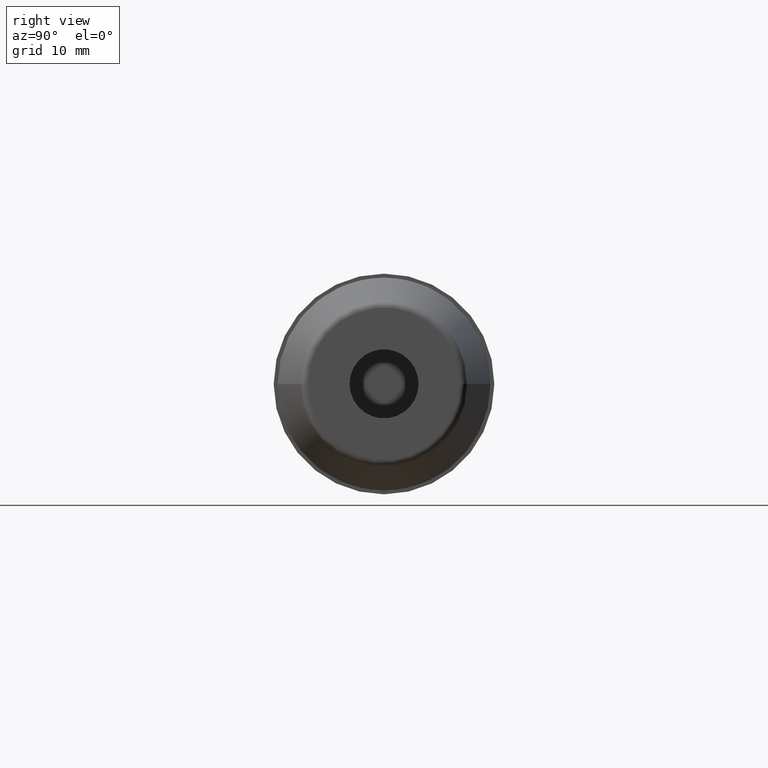
[diagram: clean part render]
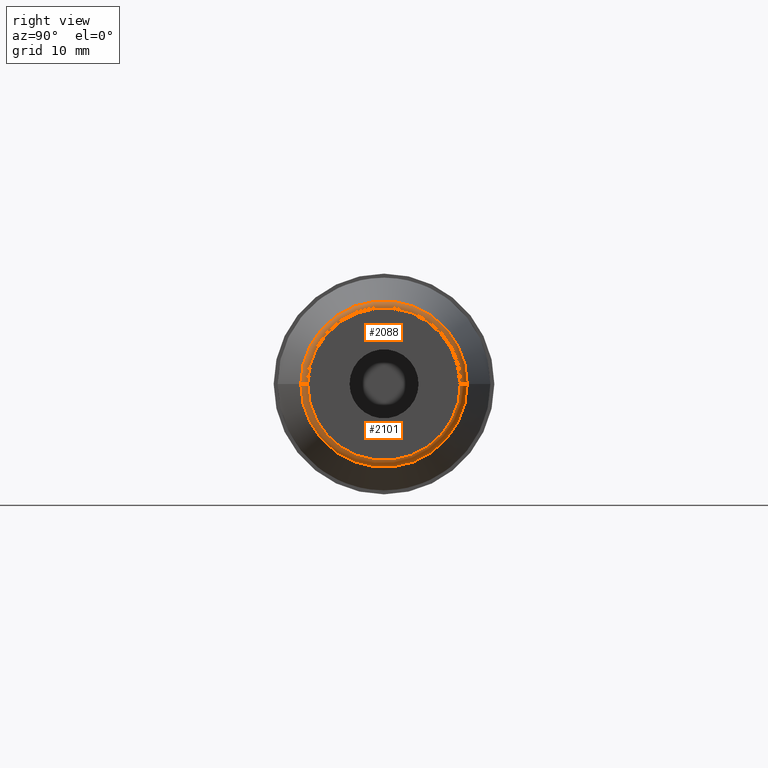
[diagram: same view with one multi-face feature highlighted, each face labeled with its STEP entity id]
A machine part, right view. The highlighted faces form ONE feature: a constant-radius fillet chain: 2 tangent blend faces with common blend radius 1 mm. The faces share edges in the B-rep.
Their STEP definitions:
[1] entity #2088 (Torus):
#728=CARTESIAN_POINT('',(7.907845909573E1,0.E0,0.E0));
#729=DIRECTION('',(-1.E0,0.E0,0.E0));
#730=DIRECTION('',(0.E0,-1.E0,0.E0));
#731=AXIS2_PLACEMENT_3D('',#728,#729,#730);
#738=CARTESIAN_POINT('',(7.9E1,-1.107560950834E1,-1.579691238929E-11));
#739=DIRECTION('',(0.E0,-1.426278366246E-12,1.E0));
#740=DIRECTION('',(7.845909572791E-2,-9.969173337331E-1,-1.421881626039E-12));
#741=AXIS2_PLACEMENT_3D('',#738,#739,#740);
#743=CARTESIAN_POINT('',(7.9E1,1.107560950834E1,1.578993186202E-11));
#744=DIRECTION('',(0.E0,1.425648661624E-12,-1.E0));
#745=DIRECTION('',(7.845909572791E-2,9.969173337331E-1,1.421253862586E-12));
#746=AXIS2_PLACEMENT_3D('',#743,#744,#745);
#763=CARTESIAN_POINT('',(8.E1,0.E0,0.E0));
#764=DIRECTION('',(-1.E0,0.E0,0.E0));
#765=DIRECTION('',(0.E0,-1.E0,0.E0));
#766=AXIS2_PLACEMENT_3D('',#763,#764,#765);
#938=CARTESIAN_POINT('',(7.907845909573E1,1.207252684207E1,0.E0));
#939=CARTESIAN_POINT('',(7.907845909573E1,-1.207252684207E1,0.E0));
#940=VERTEX_POINT('',#938);
#941=VERTEX_POINT('',#939);
#942=CARTESIAN_POINT('',(8.E1,1.107560950834E1,0.E0));
#943=CARTESIAN_POINT('',(8.E1,-1.107560950834E1,0.E0));
#944=VERTEX_POINT('',#942);
#945=VERTEX_POINT('',#943);
#2074=CARTESIAN_POINT('',(7.9E1,0.E0,0.E0));
#2075=DIRECTION('',(1.E0,0.E0,0.E0));
#2076=DIRECTION('',(0.E0,-9.999855534747E-1,-5.375206224050E-3));
#2077=AXIS2_PLACEMENT_3D('',#2074,#2075,#2076);
#2078=TOROIDAL_SURFACE('',#2077,1.107560950834E1,1.E0);
#2079=ORIENTED_EDGE('',*,*,#2067,.T.);
#2081=ORIENTED_EDGE('',*,*,#2080,.T.);
#2083=ORIENTED_EDGE('',*,*,#2082,.F.);
#2085=ORIENTED_EDGE('',*,*,#2084,.F.);
#2086=EDGE_LOOP('',(#2079,#2081,#2083,#2085));
#2087=FACE_OUTER_BOUND('',#2086,.F.);
#2088=ADVANCED_FACE('',(#2087),#2078,.T.);
#732=CIRCLE('',#731,1.207252684207E1);
#742=CIRCLE('',#741,1.E0);
#747=CIRCLE('',#746,1.E0);
#767=CIRCLE('',#766,1.107560950834E1);
#2067=EDGE_CURVE('',#941,#940,#732,.T.);
#2080=EDGE_CURVE('',#940,#944,#747,.T.);
#2082=EDGE_CURVE('',#945,#944,#767,.T.);
#2084=EDGE_CURVE('',#941,#945,#742,.T.);
[2] entity #2101 (Torus):
#723=CARTESIAN_POINT('',(7.907845909573E1,0.E0,0.E0));
#724=DIRECTION('',(-1.E0,0.E0,0.E0));
#725=DIRECTION('',(0.E0,1.E0,0.E0));
#726=AXIS2_PLACEMENT_3D('',#723,#724,#725);
#738=CARTESIAN_POINT('',(7.9E1,-1.107560950834E1,-1.579691238929E-11));
#739=DIRECTION('',(0.E0,-1.426278366246E-12,1.E0));
#740=DIRECTION('',(7.845909572791E-2,-9.969173337331E-1,-1.421881626039E-12));
#741=AXIS2_PLACEMENT_3D('',#738,#739,#740);
#743=CARTESIAN_POINT('',(7.9E1,1.107560950834E1,1.578993186202E-11));
#744=DIRECTION('',(0.E0,1.425648661624E-12,-1.E0));
#745=DIRECTION('',(7.845909572791E-2,9.969173337331E-1,1.421253862586E-12));
#746=AXIS2_PLACEMENT_3D('',#743,#744,#745);
#758=CARTESIAN_POINT('',(8.E1,0.E0,0.E0));
#759=DIRECTION('',(-1.E0,0.E0,0.E0));
#760=DIRECTION('',(0.E0,1.E0,0.E0));
#761=AXIS2_PLACEMENT_3D('',#758,#759,#760);
#938=CARTESIAN_POINT('',(7.907845909573E1,1.207252684207E1,0.E0));
#939=CARTESIAN_POINT('',(7.907845909573E1,-1.207252684207E1,0.E0));
#940=VERTEX_POINT('',#938);
#941=VERTEX_POINT('',#939);
#942=CARTESIAN_POINT('',(8.E1,1.107560950834E1,0.E0));
#943=CARTESIAN_POINT('',(8.E1,-1.107560950834E1,0.E0));
#944=VERTEX_POINT('',#942);
#945=VERTEX_POINT('',#943);
#2089=CARTESIAN_POINT('',(7.9E1,0.E0,0.E0));
#2090=DIRECTION('',(1.E0,0.E0,0.E0));
#2091=DIRECTION('',(0.E0,9.999855534747E-1,5.375206224051E-3));
#2092=AXIS2_PLACEMENT_3D('',#2089,#2090,#2091);
#2093=TOROIDAL_SURFACE('',#2092,1.107560950834E1,1.E0);
#2094=ORIENTED_EDGE('',*,*,#2056,.T.);
#2095=ORIENTED_EDGE('',*,*,#2084,.T.);
#2097=ORIENTED_EDGE('',*,*,#2096,.F.);
#2098=ORIENTED_EDGE('',*,*,#2080,.F.);
#2099=EDGE_LOOP('',(#2094,#2095,#2097,#2098));
#2100=FACE_OUTER_BOUND('',#2099,.F.);
#2101=ADVANCED_FACE('',(#2100),#2093,.T.);
#727=CIRCLE('',#726,1.207252684207E1);
#742=CIRCLE('',#741,1.E0);
#747=CIRCLE('',#746,1.E0);
#762=CIRCLE('',#761,1.107560950834E1);
#2056=EDGE_CURVE('',#940,#941,#727,.T.);
#2080=EDGE_CURVE('',#940,#944,#747,.T.);
#2084=EDGE_CURVE('',#941,#945,#742,.T.);
#2096=EDGE_CURVE('',#944,#945,#762,.T.);